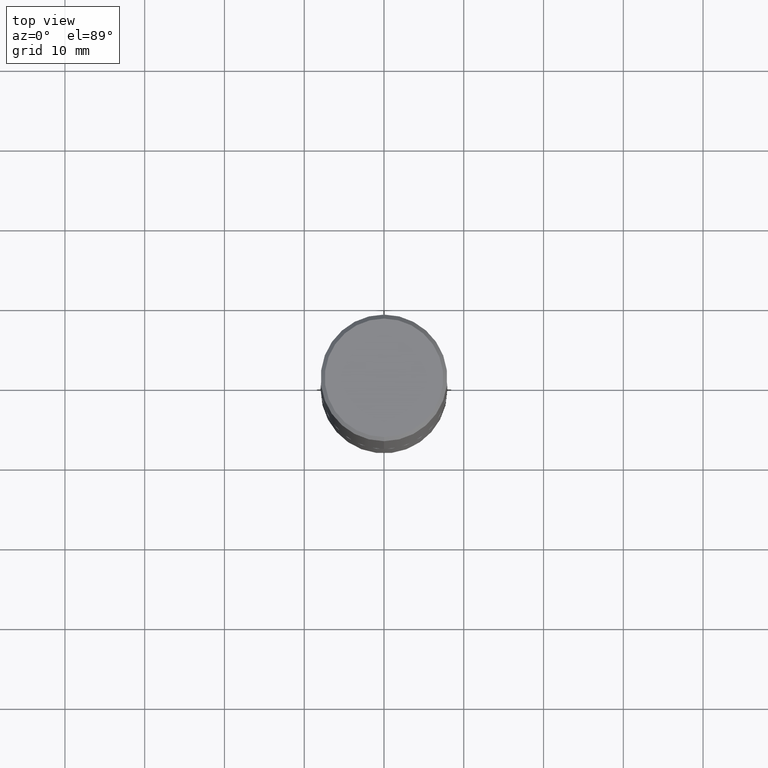
[diagram: clean part render]
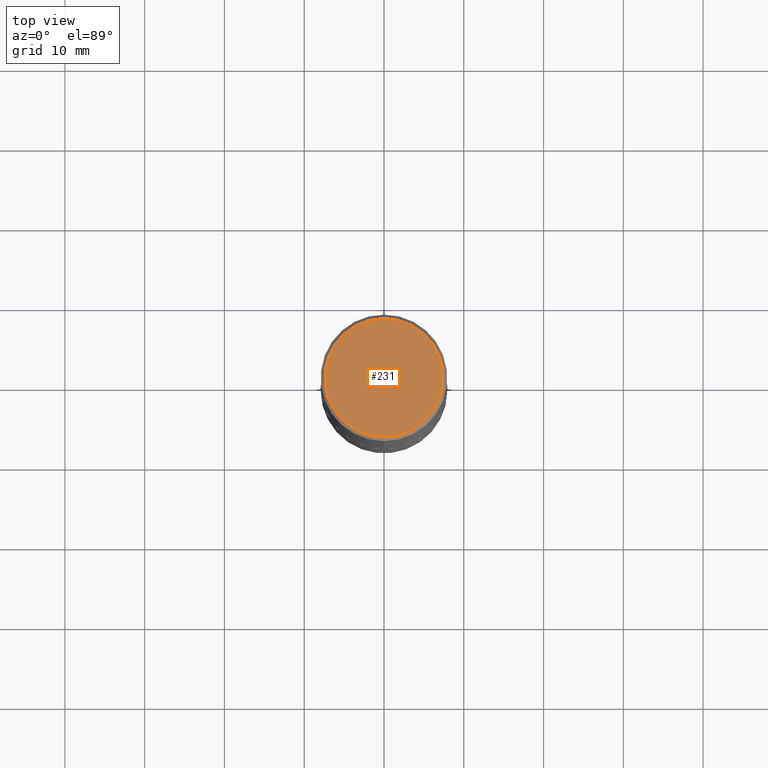
[diagram: same view with one face highlighted and labeled with its STEP entity id]
A machine part, top view. The second image highlights one B-rep face of the part: STEP entity #231.
In plain terms, the highlighted planar face has unit normal (0, -0, -1).
Its self-contained STEP definition (entity closure, byte-faithful):
#3 = AXIS2_PLACEMENT_3D ( 'NONE', #241, #73, #38 ) ;
#8 = CARTESIAN_POINT ( 'NONE',  ( -3.442316563715977020E-45, 4.913625611108191722E-31, 1.407474657508472091E-16 ) ) ;
#38 = DIRECTION ( 'NONE',  ( -6.982962677686265133E-15, -1.000000000000000000, 3.491093487826165840E-15 ) ) ;
#49 = CIRCLE ( 'NONE', #3, 0.2924999999999999267 ) ;
#66 = AXIS2_PLACEMENT_3D ( 'NONE', #94, #325, #160 ) ;
#73 = DIRECTION ( 'NONE',  ( -2.445739641102743317E-29, 3.491093487826166629E-15, 1.000000000000000000 ) ) ;
#74 = VERTEX_POINT ( 'NONE', #343 ) ;
#94 = CARTESIAN_POINT ( 'NONE',  ( 2.042516583223232145E-15, 0.2924999999999999267, -9.507711123137296887E-16 ) ) ;
#106 = ORIENTED_EDGE ( 'NONE', *, *, #253, .T. ) ;
#121 = PLANE ( 'NONE',  #66 ) ;
#131 = VERTEX_POINT ( 'NONE', #179 ) ;
#159 = CIRCLE ( 'NONE', #405, 0.2924999999999999267 ) ;
#160 = DIRECTION ( 'NONE',  ( 6.982962677686265922E-15, 1.000000000000000000, -3.491093487826166629E-15 ) ) ;
#179 = CARTESIAN_POINT ( 'NONE',  ( -2.075300644325888282E-15, -0.2924999999999999267, 1.161892310940000749E-15 ) ) ;
#231 = ADVANCED_FACE ( 'NONE', ( #289 ), #121, .F. ) ;
#238 = ORIENTED_EDGE ( 'NONE', *, *, #411, .T. ) ;
#241 = CARTESIAN_POINT ( 'NONE',  ( -3.442316563715977020E-45, 4.913625611108191722E-31, 1.407474657508472091E-16 ) ) ;
#245 = DIRECTION ( 'NONE',  ( -6.982962677686265133E-15, -1.000000000000000000, 3.491093487826165840E-15 ) ) ;
#253 = EDGE_CURVE ( 'NONE', #131, #74, #49, .T. ) ;
#265 = EDGE_LOOP ( 'NONE', ( #238, #106 ) ) ;
#289 = FACE_OUTER_BOUND ( 'NONE', #265, .T. ) ;
#325 = DIRECTION ( 'NONE',  ( 2.445739641102743037E-29, -3.491093487826166629E-15, -1.000000000000000000 ) ) ;
#343 = CARTESIAN_POINT ( 'NONE',  ( 2.112346210000095838E-15, 0.2924999999999999267, -8.803973794383061334E-16 ) ) ;
#371 = DIRECTION ( 'NONE',  ( -2.445739641102743317E-29, 3.491093487826166629E-15, 1.000000000000000000 ) ) ;
#405 = AXIS2_PLACEMENT_3D ( 'NONE', #8, #371, #245 ) ;
#411 = EDGE_CURVE ( 'NONE', #74, #131, #159, .T. ) ;